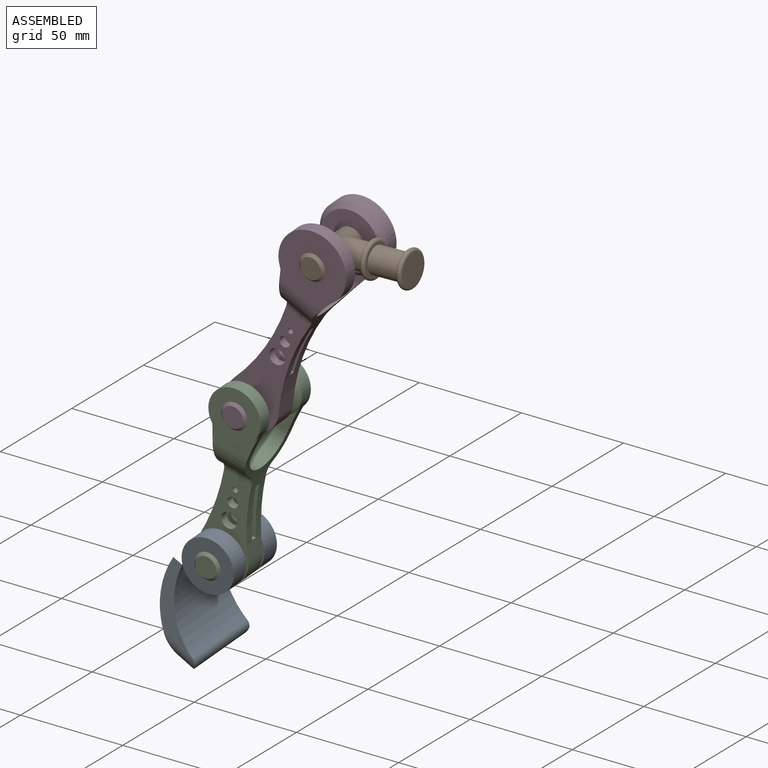
[diagram: assembled view]
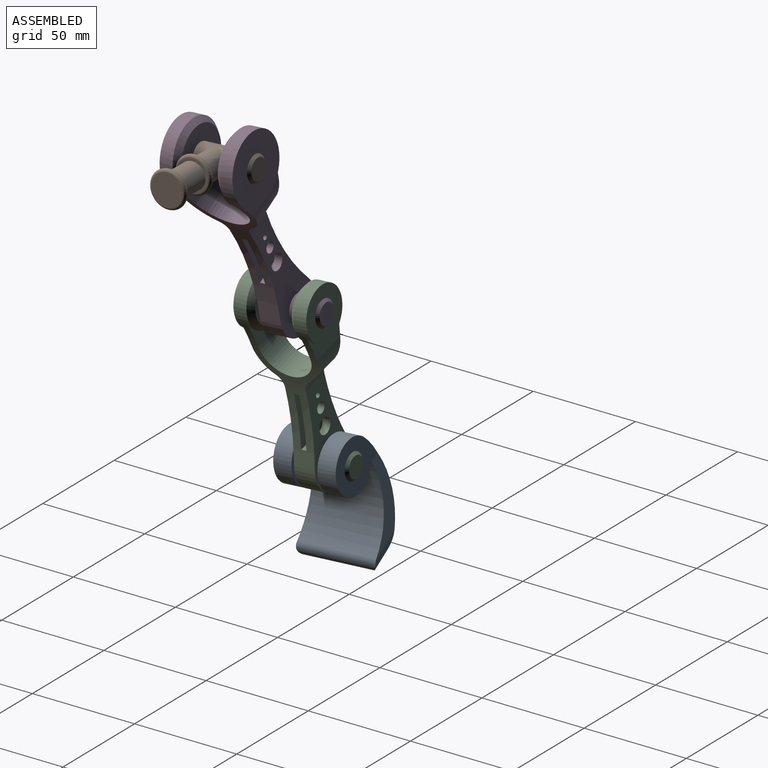
[diagram: assembled view, second angle]
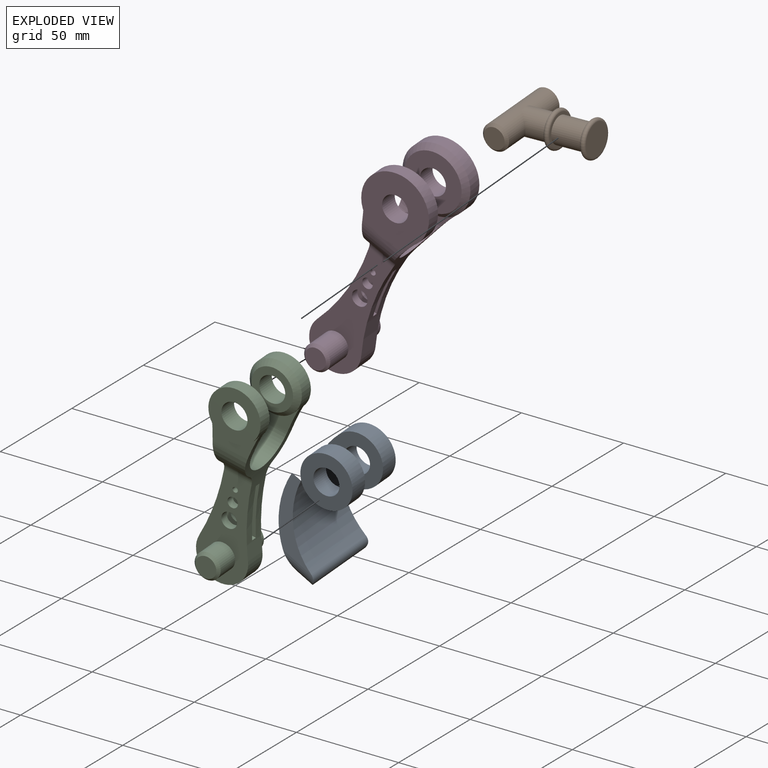
[diagram: exploded view]
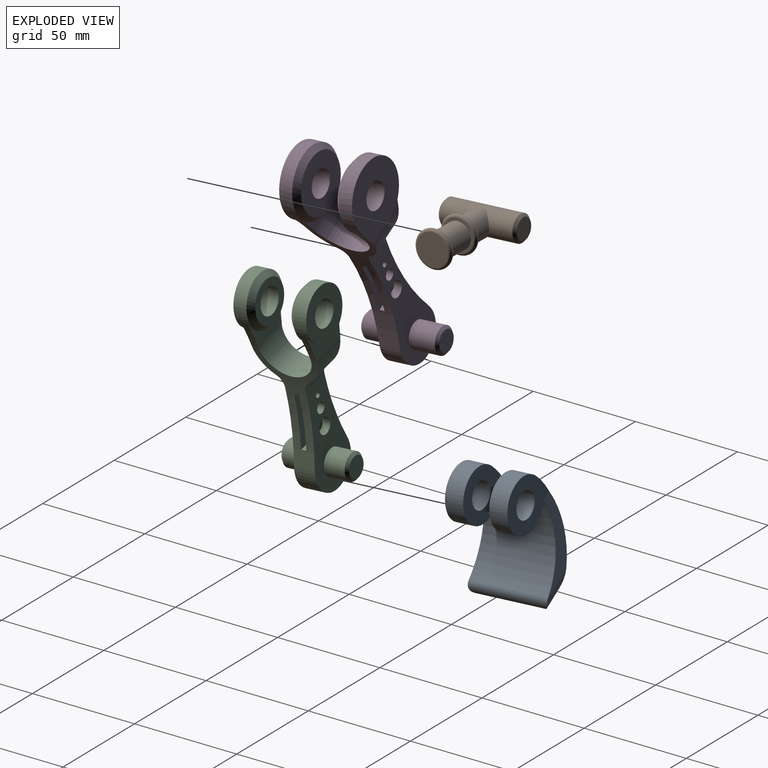
[diagram: exploded view, second angle]
ASSEMBLY  parts=4 mates=3
PART A: 19 faces, bbox 39.3x32.7x59.8 mm
  f0: cylinder r=35.56mm len=38.7mm, axis (-1,0,0), area 1425.8mm2, adj f2,f3,f5,f9,f10,f11,f12,f16
  f1: cylinder r=39.21mm len=51.08mm, axis (-1,0,0), area 1807.4mm2, adj f3,f5,f9,f10,f11,f12,f13,f14
  f2: cylinder r=3.81mm len=38.83mm, axis (-1,0,0), area 347.3mm2, adj f0,f12,f13,f14,f15,f16
  f3: cylinder r=12.7mm len=25.4mm, axis (-1,0,0), area 587.1mm2, adj f0,f1,f8,f10
  f4: cylinder r=6.35mm len=12.7mm, axis (-1,0,0), area 354.7mm2, adj f8,f10
  f5: cylinder r=12.7mm len=25.4mm, axis (-1,0,0), area 587mm2, adj f0,f1,f7,f9
  f6: cylinder r=6.35mm len=12.7mm, axis (-1,0,0), area 354.7mm2, adj f7,f9
  f7: plane 25.53x25.52mm, normal (1,0,0), area 380mm2, adj f5,f6,f16,f18
  f8: plane 25.53x25.51mm, normal (-1,0,0), area 380mm2, adj f3,f4,f17
  f9: plane 31.7x27.07mm, normal (-1,0,0), area 430.2mm2, adj f0,f1,f5,f6,f11
  f10: plane 31.7x27.07mm, normal (1,0,0), area 430.2mm2, adj f0,f1,f3,f4,f11
  f11: cylinder r=5.08mm len=12.7mm, axis (1,0,0), area 109.3mm2, adj f0,f1,f9,f10
  f12: plane 31.19x30.26mm, normal (-0.99,0,0.13), area 244.2mm2, adj f0,f1,f2,f13,f17
  f13: cylinder r=6.35mm len=18.11mm, axis (0,1,0), area 113.9mm2, adj f1,f2,f12,f14
  f14: plane 26.13x2.31mm, normal (0,0,-1), area 60.4mm2, adj f1,f2,f13,f15
  f15: cylinder r=6.35mm len=18.11mm, axis (0,1,0), area 113.8mm2, adj f1,f2,f14,f16
  f16: plane 31.51x30.28mm, normal (0.99,0,0.13), area 245.9mm2, adj f0,f1,f2,f7,f15,f18
  f17: plane 13.14x4.9mm, normal (-1,0,0), area 21.3mm2, adj f0,f1,f8,f12
  f18: plane 12.87x4.87mm, normal (1,0,0), area 19.8mm2, adj f1,f7,f16
PART B: 15 faces, bbox 43.2x38.1x19.2 mm
  f0: cylinder r=6.35mm len=15.24mm, axis (-1,0,0), area 608mm2, adj f2,f5
  f1: plane 15.24x15.24mm, normal (-1,0,0), area 182.4mm2, adj f3
  f2: plane 15.24x15.24mm, normal (1,0,0), area 55.7mm2, adj f0,f3
  f3: torus R=7.62mm, axis (-1,0,0), area 211.3mm2, adj f1,f2
  f4: plane 15.24x15.24mm, normal (1,0,0), area 55.7mm2, adj f6,f10
  f5: plane 15.24x15.24mm, normal (-1,0,0), area 55.7mm2, adj f0,f6
  f6: torus R=7.62mm, axis (1,0,0), area 211.3mm2, adj f4,f5
  f7: cylinder r=6.35mm len=35.56mm, axis (0,1,0), area 1269.6mm2, adj f10,f11,f12,f13,f14
  f8: plane 10.16x10.16mm, normal (0,-1,0), area 81.1mm2, adj f14
  f9: plane 10.16x10.16mm, normal (0,1,0), area 81.1mm2, adj f13
  f10: cylinder r=6.35mm len=14.1mm, axis (-1,0,0), area 485.6mm2, adj f4,f7,f11,f12
  f11: plane 4.83x0.48mm, normal (1,0,0), area 1.5mm2, adj f7,f10
  f12: plane 4.83x0.48mm, normal (1,0,0), area 1.5mm2, adj f7,f10
  f13: cone r=6.35mm half-angle=45deg, axis (0,-1,0), area 64.5mm2, adj f7,f9
  f14: cone r=5.08mm half-angle=45deg, axis (0,1,0), area 64.5mm2, adj f7,f8
PART C: 40 faces, bbox 35.6x25.4x101.6 mm
  f0: cylinder r=114.3mm len=68.58mm, axis (-1,0,0), area 576.9mm2, adj f2,f3,f4,f5,f6,f7,f9,f10
  f1: cylinder r=114.3mm len=68.58mm, axis (-1,0,0), area 577mm2, adj f2,f3,f4,f5,f6,f7,f9,f10
  f2: cylinder r=15.88mm len=17.34mm, axis (0,-1,0), area 250.3mm2, adj f0,f1,f3,f9
  f3: cylinder r=6.35mm len=14.09mm, axis (0,-1,0), area 91mm2, adj f0,f1,f2,f10
  f4: cylinder r=6.35mm len=14.09mm, axis (0,-1,0), area 91mm2, adj f0,f1,f5,f11
  f5: cylinder r=15.88mm len=17.34mm, axis (0,-1,0), area 250.3mm2, adj f0,f1,f4,f12
  f6: cylinder r=12.7mm len=25.4mm, axis (0,-1,0), area 604.5mm2, adj f0,f1,f13,f14
  f7: cylinder r=12.7mm len=25.4mm, axis (-1,0,0), area 404.3mm2, adj f0,f1,f12,f13,f17,f22
  f8: cylinder r=6.35mm len=12.7mm, axis (1,0,0), area 354.7mm2, adj f17,f19
  f9: plane 24.23x13.97mm, normal (1,0,0), area 128mm2, adj f0,f1,f2,f15
  f10: plane 52.05x25.4mm, normal (1,0,0), area 757.2mm2, adj f0,f1,f3,f25,f29,f34,f35,f36
  f11: plane 52.05x25.4mm, normal (-1,0,0), area 757.2mm2, adj f0,f1,f4,f24,f29,f37,f38,f39
  f12: plane 24.23x13.97mm, normal (-1,0,0), area 128mm2, adj f0,f1,f5,f7
  f13: plane 24.23x13.97mm, normal (1,0,0), area 128mm2, adj f0,f1,f6,f7
  f14: plane 24.23x13.97mm, normal (-1,0,0), area 128mm2, adj f0,f1,f6,f15
  f15: cylinder r=12.7mm len=25.4mm, axis (-1,0,0), area 404.3mm2, adj f0,f1,f9,f14,f16,f21
  f16: plane 25.4x25.4mm, normal (1,0,0), area 380mm2, adj f15,f18
  f17: plane 25.4x25.4mm, normal (-1,0,0), area 380mm2, adj f7,f8
  f18: cylinder r=6.35mm len=12.7mm, axis (1,0,0), area 354.7mm2, adj f16,f20
  f19: plane 20.32x20.32mm, normal (1,0,0), area 197.6mm2, adj f8,f22
  f20: plane 20.32x20.32mm, normal (-1,0,0), area 197.6mm2, adj f18,f21
  f21: cone r=12.7mm half-angle=45deg, axis (1,0,0), area 258mm2, adj f15,f20
  f22: cone r=10.16mm half-angle=45deg, axis (-1,0,0), area 258mm2, adj f7,f19
  f23: plane 10.16x10.16mm, normal (-1,0,0), area 81.1mm2, adj f28
  f24: cylinder r=6.35mm len=12.7mm, axis (-1,0,0), area 405.4mm2, adj f11,f28
  f25: cylinder r=6.35mm len=12.7mm, axis (-1,0,0), area 405.4mm2, adj f10,f27
  f26: plane 10.16x10.16mm, normal (1,0,0), area 81.1mm2, adj f27
  f27: cone r=5.08mm half-angle=45deg, axis (-1,0,0), area 64.5mm2, adj f25,f26
  f28: cone r=6.35mm half-angle=45deg, axis (1,0,0), area 64.5mm2, adj f23,f24
  f29: cylinder r=12.7mm len=25.4mm, axis (-1,0,0), area 484mm2, adj f0,f1,f10,f11
  f30: plane 20.02x2.54mm, normal (0,0,1), area 50.9mm2, adj f0,f1,f31,f33
  f31: plane 25.4x20.02mm, normal (1,0,0), area 333mm2, adj f0,f1,f30,f32,f37,f38,f39
  f32: plane 13.72x2.54mm, normal (0,0,-1), area 34.8mm2, adj f0,f1,f31,f33
  f33: plane 25.4x20.02mm, normal (-1,0,0), area 333mm2, adj f0,f1,f30,f32,f34,f35,f36
  f34: cylinder r=1.27mm len=3.81mm, axis (1,0,0), area 30.4mm2, adj f10,f33
  f35: cylinder r=2.54mm len=5.08mm, axis (1,0,0), area 60.8mm2, adj f10,f33
  f36: cylinder r=3.81mm len=7.62mm, axis (1,0,0), area 91.2mm2, adj f10,f33
  f37: cylinder r=1.27mm len=3.81mm, axis (1,0,0), area 30.4mm2, adj f11,f31
  f38: cylinder r=2.54mm len=5.08mm, axis (1,0,0), area 60.8mm2, adj f11,f31
  f39: cylinder r=3.81mm len=7.62mm, axis (1,0,0), area 91.2mm2, adj f11,f31
PART D: 40 faces, bbox 38.1x33x118.1 mm
  f0: cylinder r=101.6mm len=77.6mm, axis (-1,0,0), area 688.9mm2, adj f2,f3,f4,f5,f6,f7,f9,f10
  f1: cylinder r=101.6mm len=77.61mm, axis (-1,0,0), area 689.2mm2, adj f2,f3,f4,f5,f6,f7,f9,f10
  f2: cylinder r=15.88mm len=21.45mm, axis (0,-1,0), area 283.9mm2, adj f0,f1,f3,f9
  f3: cylinder r=6.35mm len=14.56mm, axis (0,-1,0), area 89.9mm2, adj f0,f1,f2,f10
  f4: cylinder r=6.35mm len=14.56mm, axis (0,-1,0), area 89.9mm2, adj f0,f1,f5,f11
  f5: cylinder r=15.88mm len=21.45mm, axis (0,-1,0), area 283.9mm2, adj f0,f1,f4,f12
  f6: cylinder r=12.7mm len=25.4mm, axis (0,-1,0), area 680mm2, adj f0,f1,f13,f14
  f7: cylinder r=16.51mm len=33.02mm, axis (-1,0,0), area 539mm2, adj f0,f1,f12,f13,f17,f22
  f8: cylinder r=6.35mm len=12.7mm, axis (1,0,0), area 354.7mm2, adj f17,f19
  f9: plane 29.99x10.87mm, normal (1,0,0), area 70.1mm2, adj f0,f1,f2,f15
  f10: plane 64.75x25.4mm, normal (1,0,0), area 856.2mm2, adj f0,f1,f3,f25,f29,f34,f35,f36
  f11: plane 64.75x25.4mm, normal (-1,0,0), area 856.2mm2, adj f0,f1,f4,f24,f29,f37,f38,f39
  f12: plane 29.99x10.87mm, normal (-1,0,0), area 70.1mm2, adj f0,f1,f5,f7
  f13: plane 29.99x10.87mm, normal (1,0,0), area 70.1mm2, adj f0,f1,f6,f7
  f14: plane 29.99x10.87mm, normal (-1,0,0), area 70.1mm2, adj f0,f1,f6,f15
  f15: cylinder r=16.51mm len=33.02mm, axis (-1,0,0), area 539mm2, adj f0,f1,f9,f14,f16,f21
  f16: plane 33.02x33.02mm, normal (1,0,0), area 729.7mm2, adj f15,f18
  f17: plane 33.02x33.02mm, normal (-1,0,0), area 729.7mm2, adj f7,f8
  f18: cylinder r=6.35mm len=12.7mm, axis (1,0,0), area 354.7mm2, adj f16,f20
  f19: plane 27.94x27.94mm, normal (1,0,0), area 486.4mm2, adj f8,f22
  f20: plane 27.94x27.94mm, normal (-1,0,0), area 486.4mm2, adj f18,f21
  f21: cone r=16.51mm half-angle=45deg, axis (1,0,0), area 344mm2, adj f15,f20
  f22: cone r=13.97mm half-angle=45deg, axis (-1,0,0), area 344mm2, adj f7,f19
  f23: plane 10.16x10.16mm, normal (-1,0,0), area 81.1mm2, adj f28
  f24: cylinder r=6.35mm len=12.7mm, axis (-1,0,0), area 506.7mm2, adj f11,f28
  f25: cylinder r=6.35mm len=12.7mm, axis (-1,0,0), area 506.7mm2, adj f10,f27
  f26: plane 10.16x10.16mm, normal (1,0,0), area 81.1mm2, adj f27
  f27: cone r=5.08mm half-angle=45deg, axis (-1,0,0), area 64.5mm2, adj f25,f26
  f28: cone r=6.35mm half-angle=45deg, axis (1,0,0), area 64.5mm2, adj f23,f24
  f29: cylinder r=12.7mm len=25.4mm, axis (-1,0,0), area 496.4mm2, adj f0,f1,f10,f11
  f30: plane 14.52x2.54mm, normal (0,0,1), area 36.9mm2, adj f0,f1,f31,f33
  f31: plane 25.4x14.52mm, normal (1,0,0), area 237.3mm2, adj f0,f1,f30,f32,f37,f38,f39
  f32: plane 11.89x2.54mm, normal (0,0,-1), area 30.2mm2, adj f0,f1,f31,f33
  f33: plane 25.4x14.52mm, normal (-1,0,0), area 237.3mm2, adj f0,f1,f30,f32,f34,f35,f36
  f34: cylinder r=1.27mm len=3.81mm, axis (1,0,0), area 30.4mm2, adj f10,f33
  f35: cylinder r=2.54mm len=5.08mm, axis (1,0,0), area 60.8mm2, adj f10,f33
  f36: cylinder r=3.81mm len=7.62mm, axis (1,0,0), area 91.2mm2, adj f10,f33
  f37: cylinder r=1.27mm len=3.81mm, axis (1,0,0), area 30.4mm2, adj f11,f31
  f38: cylinder r=2.54mm len=5.08mm, axis (1,0,0), area 60.8mm2, adj f11,f31
  f39: cylinder r=3.81mm len=7.62mm, axis (1,0,0), area 91.2mm2, adj f11,f31
PLACE A rot(axis=(0.27,0.22,0.94),95deg) t=(44.12,32.87,-90.82)mm
PLACE B rot(axis=(0,1,0.03),178.6deg) t=(122.39,24.01,62.18)mm
PLACE C rot(axis=(0.15,0.09,0.99),91.6deg) t=(62.06,28.47,-16.89)mm
PLACE D rot(axis=(0.26,0.2,0.94),94.4deg) t=(103.35,23.93,61.71)mm
MATE revolute B.f7 <-> D.f7  axis (0.01,-1,-0.06) through (103.45,6.18,60.63)mm
MATE revolute D.f24 <-> C.f7  axis (-0.01,1,0.06) through (62.15,10.73,-17.97)mm
MATE revolute C.f24 <-> A.f3  axis (0.01,-1,-0.06) through (44.15,27.8,-91.13)mm
